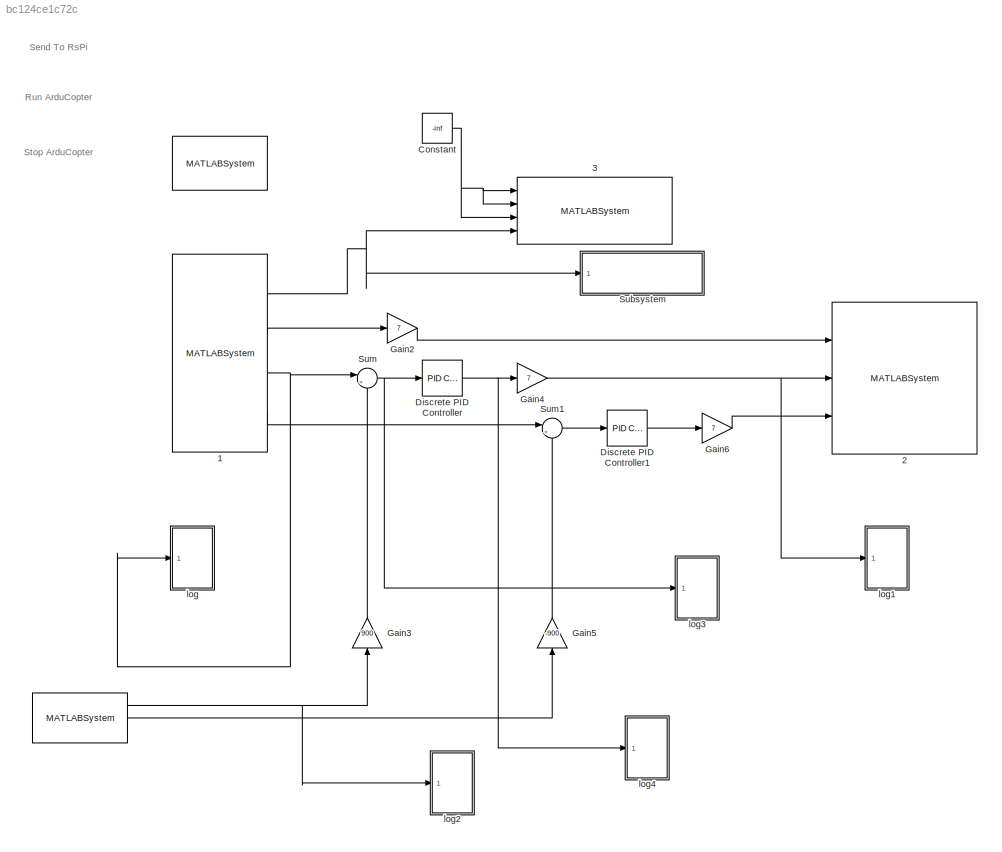
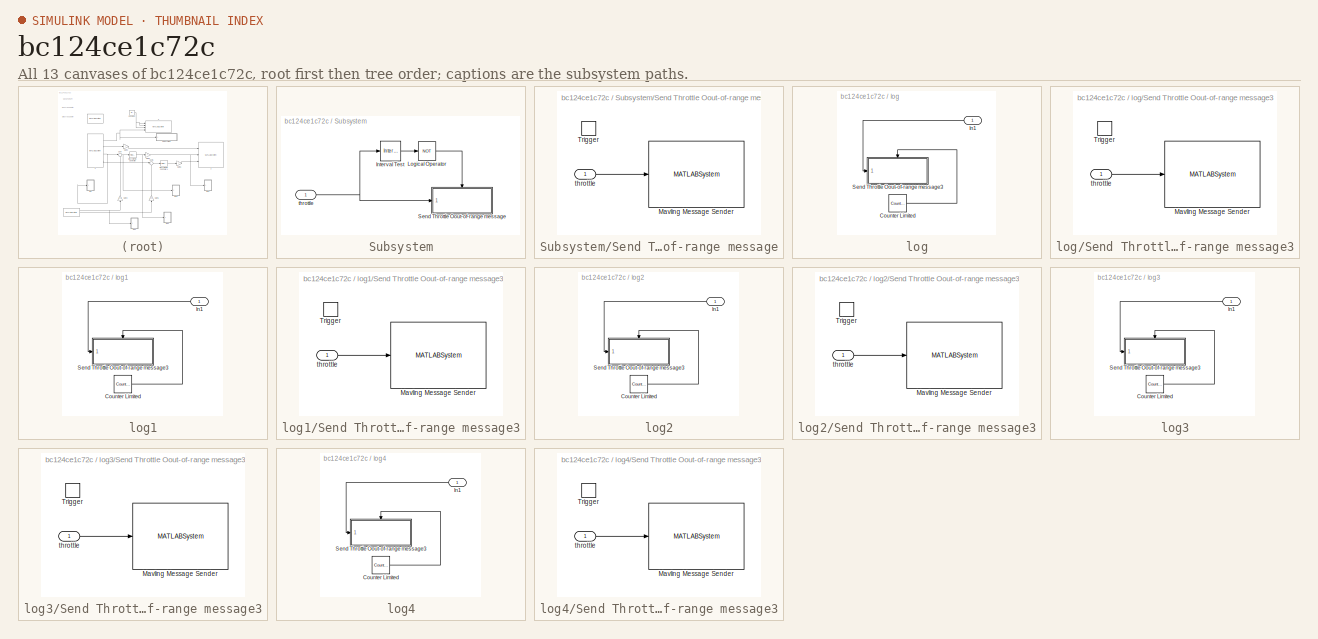
[diagram: thumbnail index - all 13 canvases of the model, root first then tree order]
MODEL slx_bc124ce1c72c
KIND model
BLOCK [MATLABSystem]   
  MaskDisplay = disp('Gyro');\nport_label('output',1,'x');\nport_label('output',2,'y');\nport_label('output',3,'z');
  MaskType = Gyro
  Ports = [0, 3]
  SimulateUsing = Interpreted execution
  System = Gyro
BLOCK [MATLABSystem]    
  MaskDisplay = disp('Accel');\nport_label('output',1,'x');\nport_label('output',2,'y');\nport_label('output',3,'z');
  MaskType = Accel
  Ports = [0, 3]
  SimulateUsing = Interpreted execution
  System = Accel
BLOCK [MATLABSystem]    1
  MaskDisplay = disp('RC');\nport_label('output',1,'thort');\nport_label('output',2,'yawR');\nport_label('output',3,'pitch');\nport_label('output',4,'roll');
  MaskType = RC
  Ports = [0, 4]
  SimulateUsing = Interpreted execution
  System = RC
BLOCK [MATLABSystem]    2
  MaskDisplay = disp('RateController');\nport_label('input',1,'yaw');\nport_label('input',2,'pitch');\nport_label('input',3,'roll');
  MaskType = RateController
  Ports = [3]
  SimulateUsing = Interpreted execution
  System = RateController
BLOCK [MATLABSystem]    3
  MaskDisplay = disp('Motors');\nport_label('input',1,'roll');\nport_label('input',2,'pitch');\nport_label('input',3,'yaw');\nport_label('input',4,'throttle');
  MaskType = Motors
  Ports = [4]
  SimulateUsing = Interpreted execution
  System = Motors
BLOCK [Constant] Constant
  Value = -inf
BLOCK [Reference] Discrete PID Controller  REF=simulink/Continuous/PID Controller
  AntiWindupMode = none
  Controller = PD
  D = 0.1
  DOutDataTypeStr = Inherit: Inherit via internal rule
  DOutMax = []
  DOutMin = []
  DParamDataTypeStr = Inherit: Inherit via internal rule
  DParamMax = []
  DParamMin = []
  ExternalReset = none
  FilterContinuousStateAttributes = ''
  FilterMethod = Forward Euler
  FilterOutDataTypeStr = Inherit: Inherit via internal rule
  FilterOutMax = []
  FilterOutMin = []
  FilterRTWStateStorageClass = Auto
  FilterStateMustResolveToSignalObject = off
  Form = Parallel
  I = 0
  IOutDataTypeStr = Inherit: Inherit via internal rule
  IOutMax = []
  IOutMin = []
  IParamDataTypeStr = Inherit: Inherit via internal rule
  IParamMax = []
  IParamMin = []
  IgnoreLimit = off
  InitialConditionForFilter = 0
  InitialConditionForIntegrator = 0
  InitialConditionSource = internal
  IntegratorContinuousStateAttributes = ''
  IntegratorMethod = Forward Euler
  IntegratorOutDataTypeStr = Inherit: Inherit via internal rule
  IntegratorOutMax = []
  IntegratorOutMin = []
  IntegratorRTWStateStorageClass = Auto
  IntegratorStateMustResolveToSignalObject = off
  Kb = 1
  KbOutDataTypeStr = Inherit: Inherit via internal rule
  KbOutMax = []
  KbOutMin = []
  KbParamDataTypeStr = Inherit: Inherit via internal rule
  KbParamMax = []
  KbParamMin = []
  Kt = 1
  KtOutDataTypeStr = Inherit: Inherit via internal rule
  KtOutMax = []
  KtOutMin = []
  KtParamDataTypeStr = Inherit: Inherit via internal rule
  KtParamMax = []
  KtParamMin = []
  LimitOutput = off
  LinearizeAsGain = off
  LockScale = off
  LowerSaturationLimit = -inf
  N = 3
  NOutDataTypeStr = Inherit: Inherit via internal rule
  NOutMax = []
  NOutMin = []
  NParamDataTypeStr = Inherit: Inherit via internal rule
  NParamMax = []
  NParamMin = []
  P = 1
  POutDataTypeStr = Inherit: Inherit via internal rule
  POutMax = []
  POutMin = []
  PParamDataTypeStr = Inherit: Inherit via internal rule
  PParamMax = []
  PParamMin = []
  Ports = [1, 1]
  RndMeth = Floor
  SampleTime = -1
  SaturateOnIntegerOverflow = off
  SaturationOutDataTypeStr = Inherit: Same as input
  SaturationOutMax = []
  SaturationOutMin = []
  SourceBlock = simulink/Continuous/PID Controller
  SourceType = PID 1dof
  SumAccumDataTypeStr = Inherit: Inherit via internal rule
  SumDAccumDataTypeStr = Inherit: Inherit via internal rule
  SumDOutDataTypeStr = Inherit: Inherit via internal rule
  SumDOutMax = []
  SumDOutMin = []
  SumI1AccumDataTypeStr = Inherit: Inherit via internal rule
  SumI1OutDataTypeStr = Inherit: Inherit via internal rule
  SumI1OutMax = []
  SumI1OutMin = []
  SumI2AccumDataTypeStr = Inherit: Inherit via internal rule
  SumI2OutDataTypeStr = Inherit: Inherit via internal rule
  SumI2OutMax = []
  SumI2OutMin = []
  SumI3AccumDataTypeStr = Inherit: Inherit via internal rule
  SumI3OutDataTypeStr = Inherit: Inherit via internal rule
  SumI3OutMax = []
  SumI3OutMin = []
  SumOutDataTypeStr = Inherit: Inherit via internal rule
  SumOutMax = []
  SumOutMin = []
  TimeDomain = Discrete-time
  TrackingMode = off
  UpperSaturationLimit = inf
  ZeroCross = off
BLOCK [Reference] Discrete PID Controller1  REF=simulink/Continuous/PID Controller
  AntiWindupMode = none
  Controller = PD
  D = 0.1
  DOutDataTypeStr = Inherit: Inherit via internal rule
  DOutMax = []
  DOutMin = []
  DParamDataTypeStr = Inherit: Inherit via internal rule
  DParamMax = []
  DParamMin = []
  ExternalReset = none
  FilterContinuousStateAttributes = ''
  FilterMethod = Forward Euler
  FilterOutDataTypeStr = Inherit: Inherit via internal rule
  FilterOutMax = []
  FilterOutMin = []
  FilterRTWStateStorageClass = Auto
  FilterStateMustResolveToSignalObject = off
  Form = Parallel
  I = 0
  IOutDataTypeStr = Inherit: Inherit via internal rule
  IOutMax = []
  IOutMin = []
  IParamDataTypeStr = Inherit: Inherit via internal rule
  IParamMax = []
  IParamMin = []
  IgnoreLimit = off
  InitialConditionForFilter = 0
  InitialConditionForIntegrator = 0
  InitialConditionSource = internal
  IntegratorContinuousStateAttributes = ''
  IntegratorMethod = Forward Euler
  IntegratorOutDataTypeStr = Inherit: Inherit via internal rule
  IntegratorOutMax = []
  IntegratorOutMin = []
  IntegratorRTWStateStorageClass = Auto
  IntegratorStateMustResolveToSignalObject = off
  Kb = 1
  KbOutDataTypeStr = Inherit: Inherit via internal rule
  KbOutMax = []
  KbOutMin = []
  KbParamDataTypeStr = Inherit: Inherit via internal rule
  KbParamMax = []
  KbParamMin = []
  Kt = 1
  KtOutDataTypeStr = Inherit: Inherit via internal rule
  KtOutMax = []
  KtOutMin = []
  KtParamDataTypeStr = Inherit: Inherit via internal rule
  KtParamMax = []
  KtParamMin = []
  LimitOutput = off
  LinearizeAsGain = off
  LockScale = off
  LowerSaturationLimit = -inf
  N = 3
  NOutDataTypeStr = Inherit: Inherit via internal rule
  NOutMax = []
  NOutMin = []
  NParamDataTypeStr = Inherit: Inherit via internal rule
  NParamMax = []
  NParamMin = []
  P = 1
  POutDataTypeStr = Inherit: Inherit via internal rule
  POutMax = []
  POutMin = []
  PParamDataTypeStr = Inherit: Inherit via internal rule
  PParamMax = []
  PParamMin = []
  Ports = [1, 1]
  RndMeth = Floor
  SampleTime = -1
  SaturateOnIntegerOverflow = off
  SaturationOutDataTypeStr = Inherit: Same as input
  SaturationOutMax = []
  SaturationOutMin = []
  SourceBlock = simulink/Continuous/PID Controller
  SourceType = PID 1dof
  SumAccumDataTypeStr = Inherit: Inherit via internal rule
  SumDAccumDataTypeStr = Inherit: Inherit via internal rule
  SumDOutDataTypeStr = Inherit: Inherit via internal rule
  SumDOutMax = []
  SumDOutMin = []
  SumI1AccumDataTypeStr = Inherit: Inherit via internal rule
  SumI1OutDataTypeStr = Inherit: Inherit via internal rule
  SumI1OutMax = []
  SumI1OutMin = []
  SumI2AccumDataTypeStr = Inherit: Inherit via internal rule
  SumI2OutDataTypeStr = Inherit: Inherit via internal rule
  SumI2OutMax = []
  SumI2OutMin = []
  SumI3AccumDataTypeStr = Inherit: Inherit via internal rule
  SumI3OutDataTypeStr = Inherit: Inherit via internal rule
  SumI3OutMax = []
  SumI3OutMin = []
  SumOutDataTypeStr = Inherit: Inherit via internal rule
  SumOutMax = []
  SumOutMin = []
  TimeDomain = Discrete-time
  TrackingMode = off
  UpperSaturationLimit = inf
  ZeroCross = off
BLOCK [Gain] Gain2
  Gain = 7
  OutDataTypeStr = Inherit: Inherit via internal rule
  ParamDataTypeStr = Inherit: Inherit via internal rule
  SaturateOnIntegerOverflow = off
BLOCK [Gain] Gain3
  Gain = 900
  OutDataTypeStr = Inherit: Inherit via internal rule
  ParamDataTypeStr = Inherit: Inherit via internal rule
  SaturateOnIntegerOverflow = off
BLOCK [Gain] Gain4
  Gain = 7
  OutDataTypeStr = Inherit: Inherit via internal rule
  ParamDataTypeStr = Inherit: Inherit via internal rule
  SaturateOnIntegerOverflow = off
BLOCK [Gain] Gain5
  Gain = -900
  OutDataTypeStr = Inherit: Inherit via internal rule
  ParamDataTypeStr = Inherit: Inherit via internal rule
  SaturateOnIntegerOverflow = off
BLOCK [Gain] Gain6
  Gain = 7
  OutDataTypeStr = Inherit: Inherit via internal rule
  ParamDataTypeStr = Inherit: Inherit via internal rule
  SaturateOnIntegerOverflow = off
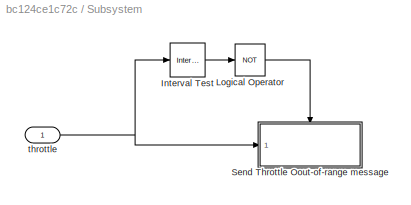
BLOCK [SubSystem] Subsystem
  Ports = [1]
  RequestExecContextInheritance = off
BLOCK [Reference] Subsystem/Interval Test  REF=simulink/Logic and Bit
Operations/Interval Test
  IntervalClosedLeft = on
  IntervalClosedRight = on
  OutDataTypeStr = boolean
  Ports = [1, 1]
  SourceBlock = simulink/Logic and Bit\nOperations/Interval Test
  SourceType = Interval Test
  lowlimit = 1000
  uplimit = 0
BLOCK [Logic] Subsystem/Logical Operator
  AllPortsSameDT = off
  Operator = NOT
  OutDataTypeStr = boolean
  Ports = [1, 1]
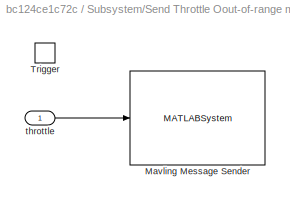
BLOCK [SubSystem] Subsystem/Send Throttle Oout-of-range message
  Ports = [1, 0, 0, 1]
  RequestExecContextInheritance = off
  TreatAsAtomicUnit = on
BLOCK [MATLABSystem] Subsystem/Send Throttle Oout-of-range message/Mavling Message Sender
  MaskDisplay = disp('MavlinkMsg');\nport_label('input',1,'u');
  MaskType = MavlinkMsg
  Message = throttle not between 0 to 1:
  Ports = [1]
  System = MavlinkMsg
BLOCK [TriggerPort] Subsystem/Send Throttle Oout-of-range message/Trigger
  Ports = []
  StatesWhenEnabling = held
BLOCK [Inport] Subsystem/Send Throttle Oout-of-range message/throttle
  IconDisplay = Port number
BLOCK [Inport] Subsystem/throttle
  IconDisplay = Port number
BLOCK [Sum] Sum
  IconShape = round
  InputSameDT = off
  Inputs = |+-
  OutDataTypeStr = Inherit: Inherit via internal rule
  Ports = [2, 1]
  SaturateOnIntegerOverflow = off
BLOCK [Sum] Sum1
  IconShape = round
  InputSameDT = off
  Inputs = |+-
  OutDataTypeStr = Inherit: Inherit via internal rule
  Ports = [2, 1]
  SaturateOnIntegerOverflow = off
BLOCK [SubSystem] log
  Ports = [1]
  RequestExecContextInheritance = off
BLOCK [Reference] log/Counter Limited  REF=simulink/Sources/Counter
Limited
  Ports = [0, 1]
  SourceBlock = simulink/Sources/Counter\nLimited
  SourceType = Counter Limited
  tsamp = -1
  uplimit = 400
BLOCK [Inport] log/In1
  IconDisplay = Port number
BLOCK [SubSystem] log/Send Throttle Oout-of-range message3
  Ports = [1, 0, 0, 1]
  RequestExecContextInheritance = off
  TreatAsAtomicUnit = on
BLOCK [MATLABSystem] log/Send Throttle Oout-of-range message3/Mavling Message Sender
  MaskDisplay = disp('MavlinkMsg');\nport_label('input',1,'u');
  MaskType = MavlinkMsg
  Message = rc pitch:
  Ports = [1]
  System = MavlinkMsg
BLOCK [TriggerPort] log/Send Throttle Oout-of-range message3/Trigger
  Ports = []
  StatesWhenEnabling = held
BLOCK [Inport] log/Send Throttle Oout-of-range message3/throttle
  IconDisplay = Port number
BLOCK [SubSystem] log1
  Ports = [1]
  RequestExecContextInheritance = off
BLOCK [Reference] log1/Counter Limited  REF=simulink/Sources/Counter
Limited
  Ports = [0, 1]
  SourceBlock = simulink/Sources/Counter\nLimited
  SourceType = Counter Limited
  tsamp = -1
  uplimit = 400
BLOCK [Inport] log1/In1
  IconDisplay = Port number
BLOCK [SubSystem] log1/Send Throttle Oout-of-range message3
  Ports = [1, 0, 0, 1]
  RequestExecContextInheritance = off
  TreatAsAtomicUnit = on
BLOCK [MATLABSystem] log1/Send Throttle Oout-of-range message3/Mavling Message Sender
  MaskDisplay = disp('MavlinkMsg');\nport_label('input',1,'u');
  MaskType = MavlinkMsg
  Message = rate cont. pitch:
  Ports = [1]
  System = MavlinkMsg
BLOCK [TriggerPort] log1/Send Throttle Oout-of-range message3/Trigger
  Ports = []
  StatesWhenEnabling = held
BLOCK [Inport] log1/Send Throttle Oout-of-range message3/throttle
  IconDisplay = Port number
BLOCK [SubSystem] log2
  Ports = [1]
  RequestExecContextInheritance = off
BLOCK [Reference] log2/Counter Limited  REF=simulink/Sources/Counter
Limited
  Ports = [0, 1]
  SourceBlock = simulink/Sources/Counter\nLimited
  SourceType = Counter Limited
  tsamp = -1
  uplimit = 400
BLOCK [Inport] log2/In1
  IconDisplay = Port number
BLOCK [SubSystem] log2/Send Throttle Oout-of-range message3
  Ports = [1, 0, 0, 1]
  RequestExecContextInheritance = off
  TreatAsAtomicUnit = on
BLOCK [MATLABSystem] log2/Send Throttle Oout-of-range message3/Mavling Message Sender
  MaskDisplay = disp('MavlinkMsg');\nport_label('input',1,'u');
  MaskType = MavlinkMsg
  Message = Accel. x:
  Ports = [1]
  System = MavlinkMsg
BLOCK [TriggerPort] log2/Send Throttle Oout-of-range message3/Trigger
  Ports = []
  StatesWhenEnabling = held
BLOCK [Inport] log2/Send Throttle Oout-of-range message3/throttle
  IconDisplay = Port number
BLOCK [SubSystem] log3
  Ports = [1]
  RequestExecContextInheritance = off
BLOCK [Reference] log3/Counter Limited  REF=simulink/Sources/Counter
Limited
  Ports = [0, 1]
  SourceBlock = simulink/Sources/Counter\nLimited
  SourceType = Counter Limited
  tsamp = -1
  uplimit = 400
BLOCK [Inport] log3/In1
  IconDisplay = Port number
BLOCK [SubSystem] log3/Send Throttle Oout-of-range message3
  Ports = [1, 0, 0, 1]
  RequestExecContextInheritance = off
  TreatAsAtomicUnit = on
BLOCK [MATLABSystem] log3/Send Throttle Oout-of-range message3/Mavling Message Sender
  MaskDisplay = disp('MavlinkMsg');\nport_label('input',1,'u');
  MaskType = MavlinkMsg
  Message = befor PID:
  Ports = [1]
  System = MavlinkMsg
BLOCK [TriggerPort] log3/Send Throttle Oout-of-range message3/Trigger
  Ports = []
  StatesWhenEnabling = held
BLOCK [Inport] log3/Send Throttle Oout-of-range message3/throttle
  IconDisplay = Port number
BLOCK [SubSystem] log4
  Ports = [1]
  RequestExecContextInheritance = off
BLOCK [Reference] log4/Counter Limited  REF=simulink/Sources/Counter
Limited
  Ports = [0, 1]
  SourceBlock = simulink/Sources/Counter\nLimited
  SourceType = Counter Limited
  tsamp = -1
  uplimit = 400
BLOCK [Inport] log4/In1
  IconDisplay = Port number
BLOCK [SubSystem] log4/Send Throttle Oout-of-range message3
  Ports = [1, 0, 0, 1]
  RequestExecContextInheritance = off
  TreatAsAtomicUnit = on
BLOCK [MATLABSystem] log4/Send Throttle Oout-of-range message3/Mavling Message Sender
  MaskDisplay = disp('MavlinkMsg');\nport_label('input',1,'u');
  MaskType = MavlinkMsg
  Message = After PID:
  Ports = [1]
  System = MavlinkMsg
BLOCK [TriggerPort] log4/Send Throttle Oout-of-range message3/Trigger
  Ports = []
  StatesWhenEnabling = held
BLOCK [Inport] log4/Send Throttle Oout-of-range message3/throttle
  IconDisplay = Port number
ANNOTATION (root): Run ArduCopter
ANNOTATION (root): Send To RsPi
ANNOTATION (root): Stop ArduCopter
NET    1:1 ->    3:4, Subsystem:1
LINE    1:2 -> Gain2:1
NET    1:3 -> Sum:1, log:1
LINE    1:4 -> Sum1:1
NET    :1 -> Gain3:1, log2:1
LINE    :2 -> Gain5:1
NET Constant:1 ->    3:1,    3:2,    3:3
LINE Discrete PID Controller1:1 -> Gain6:1
NET Discrete PID Controller:1 -> Gain4:1, log4:1
LINE Gain2:1 ->    2:1
LINE Gain3:1 -> Sum:2
NET Gain4:1 ->    2:2, log1:1
LINE Gain5:1 -> Sum1:2
LINE Gain6:1 ->    2:3
LINE Subsystem/Interval Test:1 -> Subsystem/Logical Operator:1
LINE Subsystem/Logical Operator:1 -> Subsystem/Send Throttle Oout-of-range message:trigger
LINE Subsystem/Send Throttle Oout-of-range message/throttle:1 -> Subsystem/Send Throttle Oout-of-range message/Mavling Message Sender:1
NET Subsystem/throttle:1 -> Subsystem/Interval Test:1, Subsystem/Send Throttle Oout-of-range message:1
LINE Sum1:1 -> Discrete PID Controller1:1
NET Sum:1 -> Discrete PID Controller:1, log3:1
LINE log/Counter Limited:1 -> log/Send Throttle Oout-of-range message3:trigger
LINE log/In1:1 -> log/Send Throttle Oout-of-range message3:1
LINE log/Send Throttle Oout-of-range message3/throttle:1 -> log/Send Throttle Oout-of-range message3/Mavling Message Sender:1
LINE log1/Counter Limited:1 -> log1/Send Throttle Oout-of-range message3:trigger
LINE log1/In1:1 -> log1/Send Throttle Oout-of-range message3:1
LINE log1/Send Throttle Oout-of-range message3/throttle:1 -> log1/Send Throttle Oout-of-range message3/Mavling Message Sender:1
LINE log2/Counter Limited:1 -> log2/Send Throttle Oout-of-range message3:trigger
LINE log2/In1:1 -> log2/Send Throttle Oout-of-range message3:1
LINE log2/Send Throttle Oout-of-range message3/throttle:1 -> log2/Send Throttle Oout-of-range message3/Mavling Message Sender:1
LINE log3/Counter Limited:1 -> log3/Send Throttle Oout-of-range message3:trigger
LINE log3/In1:1 -> log3/Send Throttle Oout-of-range message3:1
LINE log3/Send Throttle Oout-of-range message3/throttle:1 -> log3/Send Throttle Oout-of-range message3/Mavling Message Sender:1
LINE log4/Counter Limited:1 -> log4/Send Throttle Oout-of-range message3:trigger
LINE log4/In1:1 -> log4/Send Throttle Oout-of-range message3:1
LINE log4/Send Throttle Oout-of-range message3/throttle:1 -> log4/Send Throttle Oout-of-range message3/Mavling Message Sender:1
note: NET lines group one-source signal fan-out (src -> all destinations, sorted); 1:1 wires keep LINE
